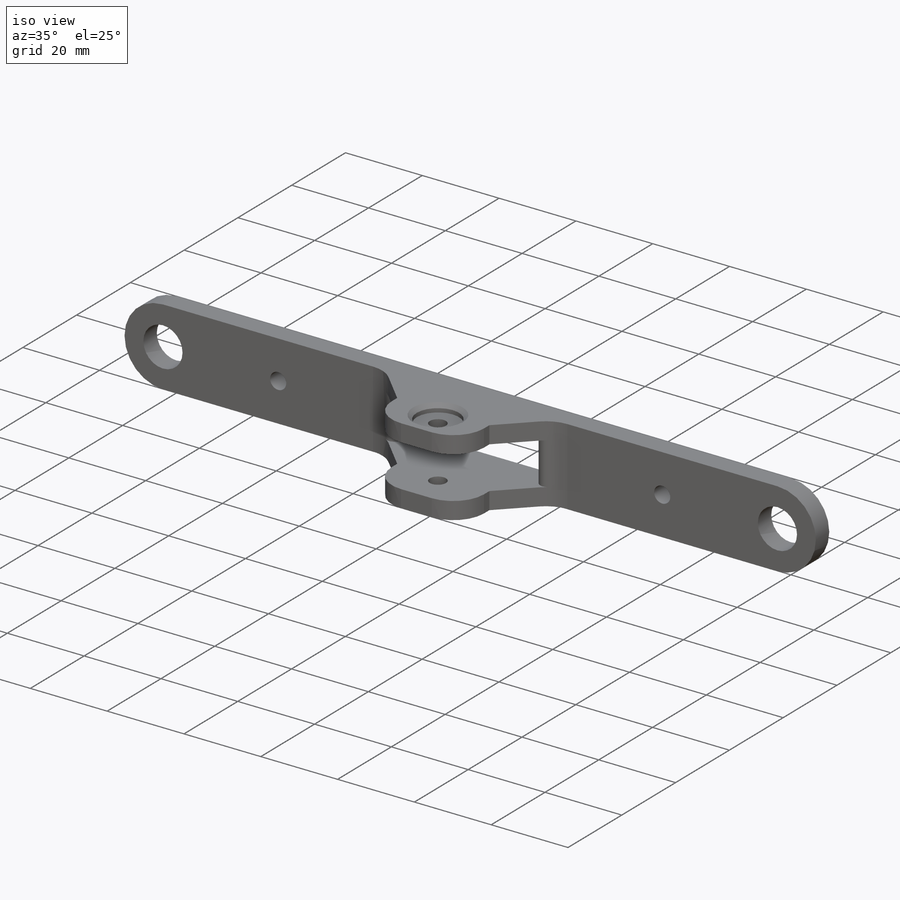
[diagram: iso view]
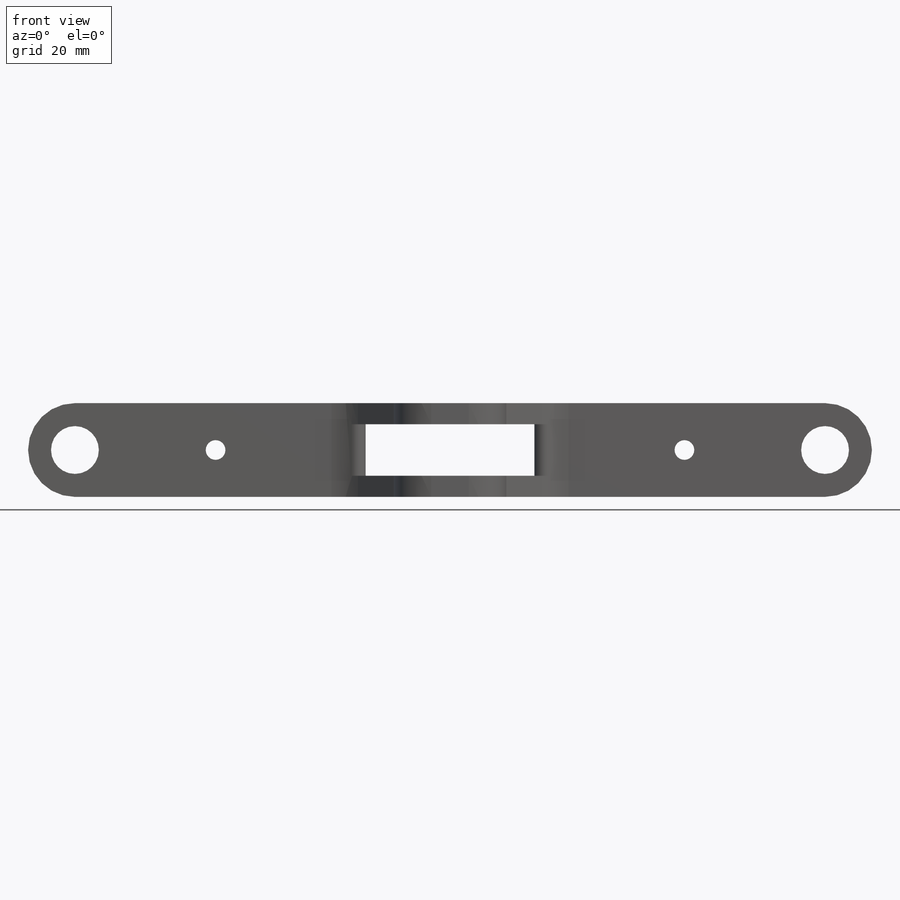
[diagram: front view]
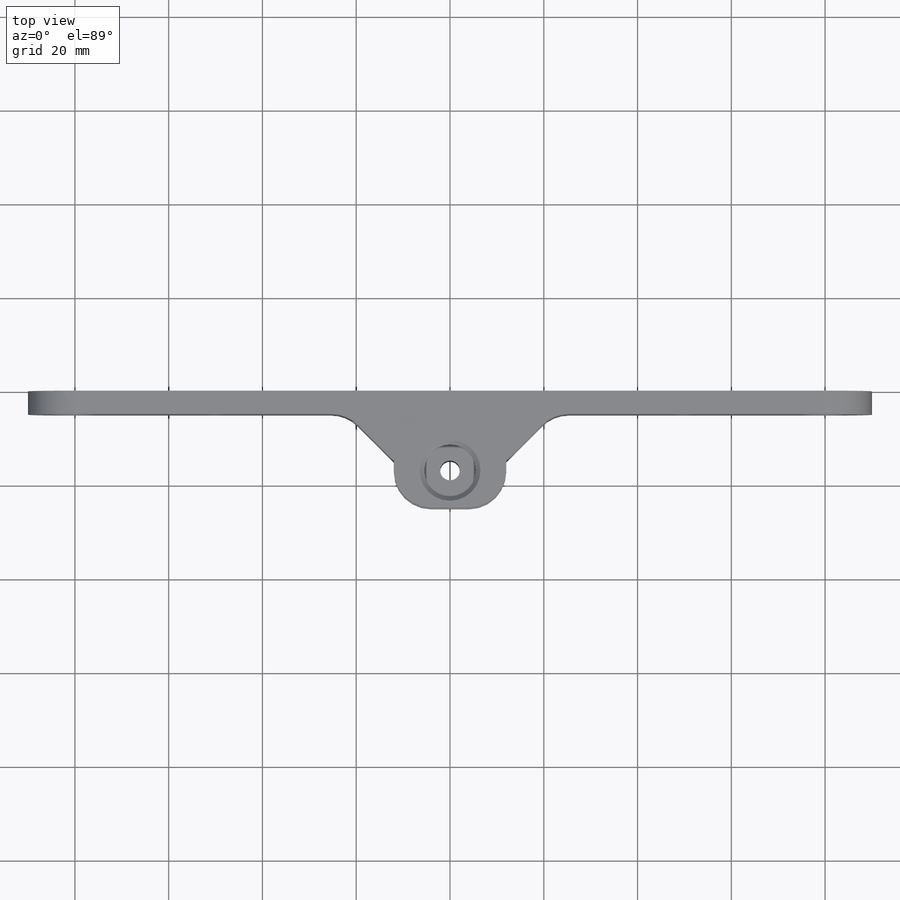
[diagram: top view]
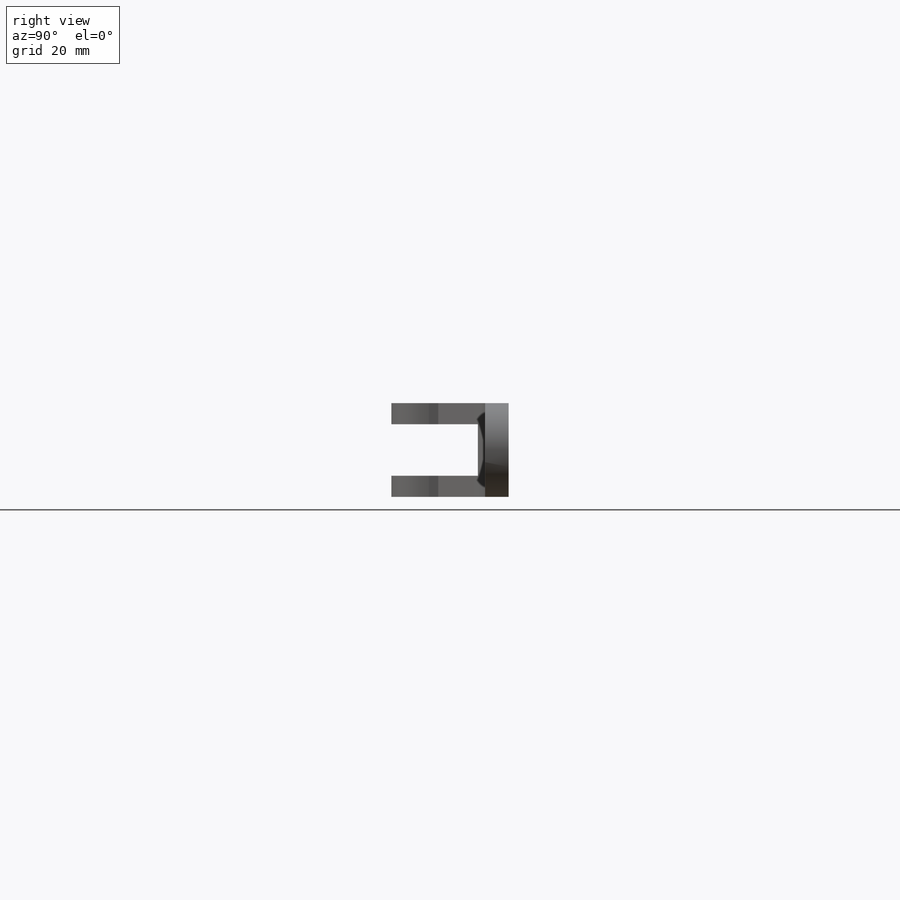
[diagram: right view]
SOLIDWORKS PART (.sldprt)
format: sldprt  version: not decoded by parser v0  size: 309,760 bytes
history: native  units: mm
features: sketch x9, cut_extrude x7, plane x3, chamfer x3, extrude x2, fillet x2, material x1 (+8 scaffold rows collapsed)
feature tree (35):
  scaffold x8  (default folders/planes/origin — collapsed)
  material  "Matériau <non spécifié>"
  plane  "Plan de face"
  plane  "Plan de dessus"
  plane  "Plan de droite"
  sketch  "Esquisse1"  dims[D1=160.0mm D2=20.0mm D3=80.0mm]
  extrude  "Boss.-Extru.1"  Depth=5mm
  sketch  "Esquisse2"  dims[c1.D1=10.2mm c1.D2=10.2mm c1.D3=4.2mm c1.D4=4.2mm c2.D3=140.0mm c2.D5=100.0mm c2.D6=50.0mm c2.D7=10.0mm c2.D8=10.0mm]
  cut_extrude  "Enlèv. mat.-Extru.1"  [1 undecoded]
  sketch  "Esquisse3"  dims[D1=24.0mm D2=12.0mm]
  extrude  "Boss.-Extru.2"  Depth=20mm
  chamfer  "Chanfrein1"  Distance=10mm Angle=45deg
  sketch  "Esquisse4"  dims[D1=11.0mm D2=4.5mm D3=6.0mm D4=6.0mm]
  cut_extrude  "Enlèv. mat.-Extru.2"  Depth=20mm
  sketch  "Esquisse5"  dims[D1=4.2mm D2=8.0mm D3=12.0mm D4=12.0mm]
  cut_extrude  "Enlèv. mat.-Extru.3"  [1 undecoded]
  fillet  "Congé1"  Radius=8mm
  sketch  "Esquisse6"  dims[D1=11.0mm]
  cut_extrude  "Enlèv. mat.-Extru.4"  Depth=2mm
  chamfer  "Chanfrein2"  Distance=1mm Angle=45deg
  fillet  "Congé4"  Radius=2mm
  sketch  "Esquisse7"  dims[D1=11.0mm]
  cut_extrude  "Enlèv. mat.-Extru.5"  Depth=2mm
  chamfer  "Chanfrein3"  Distance=1mm Angle=45deg
  sketch  "Esquisse8"
  cut_extrude  "Enlèv. mat.-Extru.6"  [1 undecoded]
  sketch  "Esquisse9"  dims[D1=2.0mm D2=1.0mm D3=5.0mm]
  cut_extrude  "Enlèv. mat.-Extru.7"  Depth=2mm
decode coverage: 19 of 23 modeling features carry decoded parameters
note: 3 parameter values undecoded
summary: no parameter record found for 3 features
note: suppression state not decoded; provenance and decode notes live in map.json
